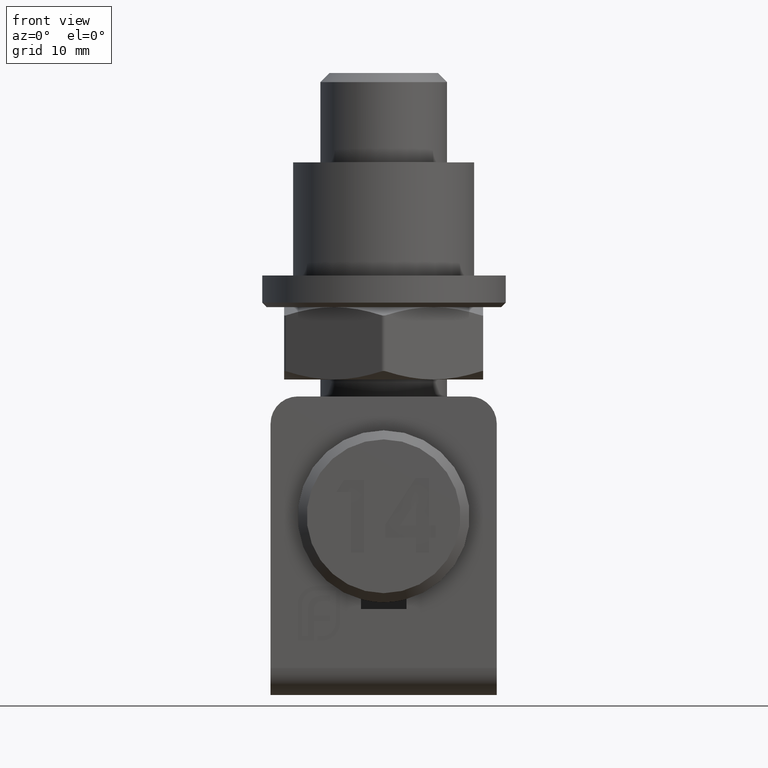
[diagram: clean part render]
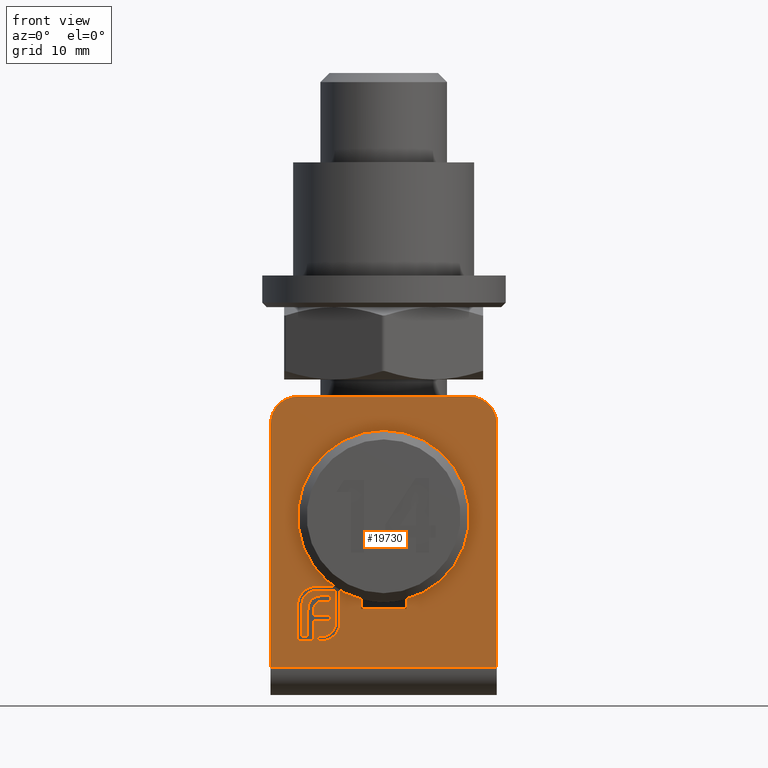
[diagram: same view with one face highlighted and labeled with its STEP entity id]
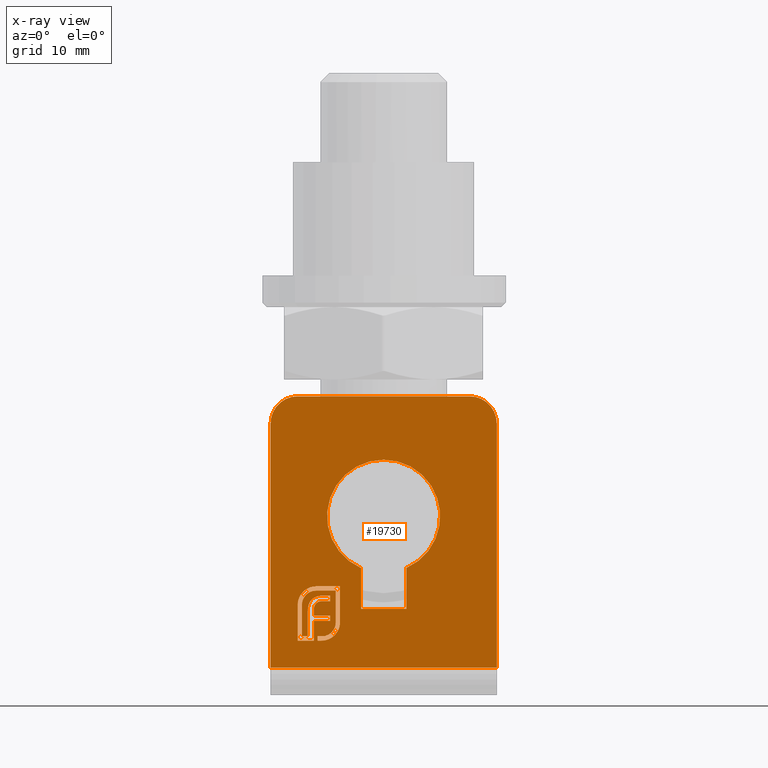
[diagram: x-ray of the same camera — body ghosted, the highlighted face saturated]
A machine part, front view. The second image highlights one B-rep face of the part: STEP entity #19730.
The next image is the same camera in x-ray: the body ghosted, the highlighted face saturated — about 0% of this face is hidden behind the body in this view.
In plain terms, the highlighted planar face has unit normal (0, 1, 0).
Its self-contained STEP definition (entity closure, byte-faithful):
#50 = EDGE_CURVE ( 'NONE', #9122, #4322, #8839, .T. ) ;
#101 = CARTESIAN_POINT ( 'NONE',  ( -8.566088173547937501, -13.00000000000000000, -6.932470258922326600 ) ) ;
#105 = CARTESIAN_POINT ( 'NONE',  ( -2.499999999999999556, -13.00000000000000178, -3.978219618694804449 ) ) ;
#115 = CARTESIAN_POINT ( 'NONE',  ( -7.400237928621415051, -13.00000000000000000, -7.130860741777470757 ) ) ;
#132 = ORIENTED_EDGE ( 'NONE', *, *, #7513, .T. ) ;
#177 = VERTEX_POINT ( 'NONE', #19785 ) ;
#209 = CARTESIAN_POINT ( 'NONE',  ( -6.863848845346397276, -12.99999999999999822, -11.52851644506648476 ) ) ;
#214 = ORIENTED_EDGE ( 'NONE', *, *, #1471, .T. ) ;
#225 = CARTESIAN_POINT ( 'NONE',  ( -6.549759342559739572, -12.99999999999999289, -11.50297381078894787 ) ) ;
#298 = VERTEX_POINT ( 'NONE', #3976 ) ;
#302 = CARTESIAN_POINT ( 'NONE',  ( -7.730888733379988942, -13.00000000000000000, -8.651854443666906036 ) ) ;
#318 = CIRCLE ( 'NONE', #14309, 6.250000000000000000 ) ;
#347 = CARTESIAN_POINT ( 'NONE',  ( -6.770433106287037539, -13.00000000000000178, -7.635780300047008140 ) ) ;
#449 = DIRECTION ( 'NONE',  ( -1.000000000000000000, 0.000000000000000000, 0.000000000000000000 ) ) ;
#461 = CARTESIAN_POINT ( 'NONE',  ( -5.552190294746988108, -12.99999999999999822, -10.83358292851261950 ) ) ;
#483 = ORIENTED_EDGE ( 'NONE', *, *, #13741, .T. ) ;
#518 = VERTEX_POINT ( 'NONE', #1221 ) ;
#544 = DIRECTION ( 'NONE',  ( 9.590931722097962823E-17, -0.000000000000000000, 1.000000000000000000 ) ) ;
#593 = CARTESIAN_POINT ( 'NONE',  ( 2.499999999999999556, -13.00000000000000178, -3.978219618694804449 ) ) ;
#595 = CARTESIAN_POINT ( 'NONE',  ( -5.471617862814120770, -12.99999999999999467, -10.70375276903396689 ) ) ;
#602 = CARTESIAN_POINT ( 'NONE',  ( -7.161434569629113511, -13.00000000000000000, -7.701539538138562513 ) ) ;
#604 = EDGE_CURVE ( 'NONE', #4322, #1997, #18329, .T. ) ;
#759 = LINE ( 'NONE', #1792, #11728 ) ;
#768 = CARTESIAN_POINT ( 'NONE',  ( -7.161434569629113511, -13.00000000000000000, -7.701539538138562513 ) ) ;
#846 = CARTESIAN_POINT ( 'NONE',  ( -7.466368089573130362, -13.00000000000000178, -7.899930020993705782 ) ) ;
#851 = B_SPLINE_CURVE_WITH_KNOTS ( 'NONE', 3,
 ( #3415, #19740, #4922, #14839, #1690, #11684, #5210 ),
 .UNSPECIFIED., .F., .F.,
 ( 4, 1, 1, 1, 4 ),
 ( 0.000000000000000000, 0.2388191941079590430, 0.4814904364426332295, 0.7358073612774026495, 1.000000000000000000 ),
 .UNSPECIFIED. ) ;
#975 = VERTEX_POINT ( 'NONE', #17075 ) ;
#1130 = CARTESIAN_POINT ( 'NONE',  ( -8.054352313862304769, -12.99999999999999822, -7.564903692512985778 ) ) ;
#1145 = LINE ( 'NONE', #19157, #2942 ) ;
#1221 = CARTESIAN_POINT ( 'NONE',  ( 12.50000000000000000, -12.99999999999999822, -15.00000000000000355 ) ) ;
#1229 = CARTESIAN_POINT ( 'NONE',  ( -7.082445766270121901, -12.99999999999999822, -12.00000000000000355 ) ) ;
#1311 = B_SPLINE_CURVE_WITH_KNOTS ( 'NONE', 3,
 ( #768, #5769, #13853, #2843, #10891, #1343, #17552 ),
 .UNSPECIFIED., .F., .F.,
 ( 4, 1, 1, 1, 4 ),
 ( 0.000000000000000000, 0.2571485471612715012, 0.5083415440098211224, 0.7546122201496923143, 1.000000000000000000 ),
 .UNSPECIFIED. ) ;
#1343 = CARTESIAN_POINT ( 'NONE',  ( -7.445396374081708402, -13.00000000000000000, -7.878326199893672666 ) ) ;
#1384 = ORIENTED_EDGE ( 'NONE', *, *, #1892, .T. ) ;
#1408 = ORIENTED_EDGE ( 'NONE', *, *, #17879, .T. ) ;
#1415 = CARTESIAN_POINT ( 'NONE',  ( -7.675215145164514752, -12.99999999999999822, -8.254489552862830593 ) ) ;
#1471 = EDGE_CURVE ( 'NONE', #17149, #17806, #18795, .T. ) ;
#1511 = ORIENTED_EDGE ( 'NONE', *, *, #20238, .T. ) ;
#1591 = CARTESIAN_POINT ( 'NONE',  ( 12.50000000000000000, -12.99999999999999822, -15.00000000000000355 ) ) ;
#1628 = DIRECTION ( 'NONE',  ( 9.590931722097962823E-17, -0.000000000000000000, -1.000000000000000000 ) ) ;
#1668 = CARTESIAN_POINT ( 'NONE',  ( -6.704850244927282432, -13.00000000000000178, -11.52415165109006523 ) ) ;
#1690 = CARTESIAN_POINT ( 'NONE',  ( -7.557855856204251488, -12.99999999999999645, -7.186325218019565142 ) ) ;
#1700 = CARTESIAN_POINT ( 'NONE',  ( -5.906513050667150821, -12.99999999999999289, -11.76538384599234455 ) ) ;
#1730 = ORIENTED_EDGE ( 'NONE', *, *, #3750, .T. ) ;
#1792 = CARTESIAN_POINT ( 'NONE',  ( -2.500000000000000000, -13.00000000000000178, -8.499999999999994671 ) ) ;
#1820 = CARTESIAN_POINT ( 'NONE',  ( -7.161434569629113511, -13.00000000000000000, -7.701539538138562513 ) ) ;
#1827 = CARTESIAN_POINT ( 'NONE',  ( -5.868665694668746546, -12.99999999999999822, -11.18262136189365741 ) ) ;
#1832 = EDGE_CURVE ( 'NONE', #9972, #12309, #7396, .T. ) ;
#1852 = CARTESIAN_POINT ( 'NONE',  ( -8.769521353321801271, -13.00000000000000000, -7.169346592754720859 ) ) ;
#1856 = EDGE_CURVE ( 'NONE', #975, #18429, #9017, .T. ) ;
#1892 = EDGE_CURVE ( 'NONE', #5041, #13272, #8297, .T. ) ;
#1898 = VECTOR ( 'NONE', #12132, 1000.000000000000000 ) ;
#1917 = CARTESIAN_POINT ( 'NONE',  ( -8.603315954647552388, -13.00000000000000178, -6.970461194472555633 ) ) ;
#1928 = CARTESIAN_POINT ( 'NONE',  ( -9.194324702589224074, -13.00000000000000000, -6.965535339398184256 ) ) ;
#1996 = DIRECTION ( 'NONE',  ( 0.000000000000000000, 3.427078129729373070E-14, -1.000000000000000000 ) ) ;
#1997 = VERTEX_POINT ( 'NONE', #3948 ) ;
#2059 = CARTESIAN_POINT ( 'NONE',  ( -5.788621413575929076, -12.99999999999999822, -11.69384184744576949 ) ) ;
#2083 = DIRECTION ( 'NONE',  ( 2.236619410981213033E-14, 4.473238821962426067E-14, -1.000000000000000000 ) ) ;
#2133 = CARTESIAN_POINT ( 'NONE',  ( -7.584042568921920413, -13.00000000000000178, -8.046340680819405122 ) ) ;
#2228 = CARTESIAN_POINT ( 'NONE',  ( -6.623820853743878523, -13.00000000000000000, -7.023093072078379961 ) ) ;
#2323 = CARTESIAN_POINT ( 'NONE',  ( -12.50000000000000000, -13.00000000000000178, 11.99999999999999289 ) ) ;
#2326 = EDGE_CURVE ( 'NONE', #11631, #14196, #15945, .T. ) ;
#2382 = B_SPLINE_CURVE_WITH_KNOTS ( 'NONE', 3,
 ( #3690, #12861, #14476, #2432, #1130, #17338, #9803 ),
 .UNSPECIFIED., .F., .F.,
 ( 4, 1, 1, 1, 4 ),
 ( 0.000000000000000000, 0.2605968594242243364, 0.5108487040965178361, 0.7577928974260942363, 0.9999999999999998890 ),
 .UNSPECIFIED. ) ;
#2432 = CARTESIAN_POINT ( 'NONE',  ( -8.144137172596060736, -12.99999999999999645, -7.694446797315327657 ) ) ;
#2458 = DIRECTION ( 'NONE',  ( -1.000000000000000000, 0.000000000000000000, 0.000000000000000000 ) ) ;
#2500 = ORIENTED_EDGE ( 'NONE', *, *, #16521, .T. ) ;
#2608 = CARTESIAN_POINT ( 'NONE',  ( -6.814812561752066067, -13.00000000000000000, -11.99919272320349606 ) ) ;
#2611 = CARTESIAN_POINT ( 'NONE',  ( -8.382475560078553656, -12.99999999999999645, -8.543526647995248524 ) ) ;
#2632 = CARTESIAN_POINT ( 'NONE',  ( -8.277074877536740871, -13.00000000000000000, -7.990552834149759143 ) ) ;
#2768 = CARTESIAN_POINT ( 'NONE',  ( -4.821161651504550782, -12.99999999999999822, -7.981980405878238649 ) ) ;
#2797 = CARTESIAN_POINT ( 'NONE',  ( -7.400237928621415051, -13.00000000000000000, -7.130860741777470757 ) ) ;
#2828 = CARTESIAN_POINT ( 'NONE',  ( -7.988128607820348392, -12.99999999999999645, -6.058217337289920401 ) ) ;
#2843 = CARTESIAN_POINT ( 'NONE',  ( -7.327818283931979870, -13.00000000000000000, -7.783925783482636085 ) ) ;
#2899 = VECTOR ( 'NONE', #3900, 1000.000000000000000 ) ;
#2942 = VECTOR ( 'NONE', #4403, 1000.000000000000000 ) ;
#2969 = VERTEX_POINT ( 'NONE', #14375 ) ;
#2971 = ORIENTED_EDGE ( 'NONE', *, *, #12626, .T. ) ;
#2987 = DIRECTION ( 'NONE',  ( 0.000000000000000000, 0.000000000000000000, 1.000000000000000000 ) ) ;
#2998 = ORIENTED_EDGE ( 'NONE', *, *, #15985, .T. ) ;
#3033 = LINE ( 'NONE', #1229, #19889 ) ;
#3036 = VECTOR ( 'NONE', #10300, 1000.000000000000000 ) ;
#3168 = VECTOR ( 'NONE', #20373, 1000.000000000000000 ) ;
#3195 = CARTESIAN_POINT ( 'NONE',  ( -9.500482855143458139, -12.99999999999999822, -10.01609517144856909 ) ) ;
#3237 = ORIENTED_EDGE ( 'NONE', *, *, #4184, .T. ) ;
#3264 = CARTESIAN_POINT ( 'NONE',  ( -7.301042687193843861, -12.99999999999999822, -11.76425822253324505 ) ) ;
#3291 = CARTESIAN_POINT ( 'NONE',  ( -6.159653851766157651, -12.99999999999999822, -11.87709708227097494 ) ) ;
#3390 = CARTESIAN_POINT ( 'NONE',  ( -9.028999300209939349, -12.99999999999999822, -11.52851644506648476 ) ) ;
#3399 = CARTESIAN_POINT ( 'NONE',  ( -6.122531041991389422, -12.99999999999999645, -11.35362514467191808 ) ) ;
#3415 = CARTESIAN_POINT ( 'NONE',  ( -7.946424072778167869, -13.00000000000000000, -7.452939118264524154 ) ) ;
#3467 = DIRECTION ( 'NONE',  ( 0.000000000000000000, 5.902190112311574406E-14, 1.000000000000000000 ) ) ;
#3476 = ORIENTED_EDGE ( 'NONE', *, *, #11796, .T. ) ;
#3498 = AXIS2_PLACEMENT_3D ( 'NONE', #18726, #9046, #4232 ) ;
#3569 = CARTESIAN_POINT ( 'NONE',  ( -5.222119301122347679, -12.99999999999999467, -11.18786039119060050 ) ) ;
#3587 = CARTESIAN_POINT ( 'NONE',  ( -8.966620311571350754, -13.00000000000000533, -7.574853533517645232 ) ) ;
#3658 = CARTESIAN_POINT ( 'NONE',  ( -7.630862625216776607, -13.00000000000000355, -8.130384924302598293 ) ) ;
#3667 = CARTESIAN_POINT ( 'NONE',  ( -7.459020293911827970, -13.00000000000000000, -5.998075577326805963 ) ) ;
#3683 = CARTESIAN_POINT ( 'NONE',  ( -6.956895859234473178, -12.99999999999999645, -7.651954961540678113 ) ) ;
#3690 = CARTESIAN_POINT ( 'NONE',  ( -8.277074877536740871, -13.00000000000000000, -7.990552834149759143 ) ) ;
#3750 = EDGE_CURVE ( 'NONE', #18752, #9972, #13324, .T. ) ;
#3760 = ORIENTED_EDGE ( 'NONE', *, *, #1832, .T. ) ;
#3778 = CARTESIAN_POINT ( 'NONE',  ( -5.389868758138798732, -13.00000000000000178, -11.38271610899181674 ) ) ;
#3797 = CARTESIAN_POINT ( 'NONE',  ( -7.664758572428274519, -13.00000000000000178, -8.222008397480761843 ) ) ;
#3838 = CARTESIAN_POINT ( 'NONE',  ( -6.821599020293913185, -12.99999999999999822, -9.817704688593424933 ) ) ;
#3873 = CARTESIAN_POINT ( 'NONE',  ( -5.406890167705848071, -13.00000000000000178, -10.56668142725440696 ) ) ;
#3897 = ORIENTED_EDGE ( 'NONE', *, *, #11312, .T. ) ;
#3900 = DIRECTION ( 'NONE',  ( 1.000000000000000000, -3.219376424897343515E-14, -3.219376424897343515E-14 ) ) ;
#3948 = CARTESIAN_POINT ( 'NONE',  ( -8.384842547235830779, -12.99999999999999822, -11.52851644506648476 ) ) ;
#3959 = CARTESIAN_POINT ( 'NONE',  ( -6.140090972708189376, -12.99999999999999822, -5.998075577326805075 ) ) ;
#3976 = CARTESIAN_POINT ( 'NONE',  ( -7.730888733379988054, -12.99999999999999822, -11.52851644506648476 ) ) ;
#4027 = ORIENTED_EDGE ( 'NONE', *, *, #1856, .T. ) ;
#4184 = EDGE_CURVE ( 'NONE', #15345, #8943, #10003, .T. ) ;
#4223 = DIRECTION ( 'NONE',  ( -0.000000000000000000, 1.000000000000000000, 1.051347561198065205E-16 ) ) ;
#4226 = CARTESIAN_POINT ( 'NONE',  ( -5.045126794699253736, -12.99999999999999645, -10.88982710312204105 ) ) ;
#4232 = DIRECTION ( 'NONE',  ( 0.000000000000000000, 0.000000000000000000, 1.000000000000000000 ) ) ;
#4257 = CARTESIAN_POINT ( 'NONE',  ( -9.218158552704425190, -12.99999999999999645, -7.004810334021633444 ) ) ;
#4268 = CARTESIAN_POINT ( 'NONE',  ( -4.821161651504550782, -13.00000000000000000, -5.998075577326805963 ) ) ;
#4272 = ORIENTED_EDGE ( 'NONE', *, *, #6892, .T. ) ;
#4276 = CARTESIAN_POINT ( 'NONE',  ( -8.277074877536740871, -13.00000000000000000, -7.990552834149759143 ) ) ;
#4305 = DIRECTION ( 'NONE',  ( 0.000000000000000000, -1.051347561198065205E-16, 1.000000000000000000 ) ) ;
#4322 = VERTEX_POINT ( 'NONE', #3390 ) ;
#4325 = LINE ( 'NONE', #10011, #6585 ) ;
#4353 = CARTESIAN_POINT ( 'NONE',  ( -6.572929676215234274, -13.00000000000000178, -11.98060464777251255 ) ) ;
#4367 = VERTEX_POINT ( 'NONE', #5519 ) ;
#4385 = EDGE_CURVE ( 'NONE', #11445, #12444, #11387, .T. ) ;
#4388 = FACE_BOUND ( 'NONE', #14804, .T. ) ;
#4403 = DIRECTION ( 'NONE',  ( 1.000000000000000000, 0.000000000000000000, 4.249576880870102935E-12 ) ) ;
#4562 = ORIENTED_EDGE ( 'NONE', *, *, #12551, .T. ) ;
#4628 = EDGE_CURVE ( 'NONE', #12309, #8912, #9636, .T. ) ;
#4714 = CARTESIAN_POINT ( 'NONE',  ( -7.730888733379988942, -13.00000000000000000, -8.651854443666906036 ) ) ;
#4718 = CARTESIAN_POINT ( 'NONE',  ( -9.499666960893474510, -13.00000000000000178, -7.984377804101307596 ) ) ;
#4743 = VERTEX_POINT ( 'NONE', #11984 ) ;
#4822 = LINE ( 'NONE', #7175, #3036 ) ;
#4831 = CARTESIAN_POINT ( 'NONE',  ( -9.417207837648707169, -13.00000000000000000, -7.470083974807561589 ) ) ;
#4922 = CARTESIAN_POINT ( 'NONE',  ( -7.833224457386100958, -13.00000000000000178, -7.348816899581505524 ) ) ;
#4933 = VECTOR ( 'NONE', #1628, 1000.000000000000000 ) ;
#4968 = ORIENTED_EDGE ( 'NONE', *, *, #8761, .T. ) ;
#4971 = CARTESIAN_POINT ( 'NONE',  ( -5.292645206438072236, -13.00000000000000178, -6.469559132260326528 ) ) ;
#4996 = VERTEX_POINT ( 'NONE', #602 ) ;
#5022 = CARTESIAN_POINT ( 'NONE',  ( -6.293170048985306408, -12.99999999999999822, -11.91672498250525258 ) ) ;
#5041 = VERTEX_POINT ( 'NONE', #15391 ) ;
#5077 = CARTESIAN_POINT ( 'NONE',  ( -9.024938726648978005, -13.00000000000000178, -7.875133732163876132 ) ) ;
#5086 = CARTESIAN_POINT ( 'NONE',  ( -6.268065080475858863, -13.00000000000000000, -7.023093072078379073 ) ) ;
#5140 = B_SPLINE_CURVE_WITH_KNOTS ( 'NONE', 3,
 ( #15114, #7032, #8469, #461, #595, #3873, #18428, #15172, #13400, #7112, #8683 ),
 .UNSPECIFIED., .F., .F.,
 ( 4, 1, 1, 1, 1, 1, 1, 1, 4 ),
 ( 0.000000000000000000, 0.1306449944096421123, 0.2560864575269015120, 0.3794856402491265657, 0.5015567681336506878, 0.6239904245018632611, 0.7465085164980392873, 0.8718400121249293422, 1.000000000000000000 ),
 .UNSPECIFIED. ) ;
#5187 = CARTESIAN_POINT ( 'NONE',  ( -7.128985288601774606, -13.00000000000000000, -7.690903131422103911 ) ) ;
#5210 = CARTESIAN_POINT ( 'NONE',  ( -7.400237928621415051, -13.00000000000000000, -7.130860741777470757 ) ) ;
#5301 = CARTESIAN_POINT ( 'NONE',  ( -7.037234379043826316, -13.00000000000000178, -7.046654734836389267 ) ) ;
#5304 = CARTESIAN_POINT ( 'NONE',  ( -9.146699469607810329, -12.99999999999999822, -6.894771722605674391 ) ) ;
#5318 = VERTEX_POINT ( 'NONE', #4971 ) ;
#5344 = CARTESIAN_POINT ( 'NONE',  ( -7.617741513626179461, -13.00000000000000178, -6.473410785245657273 ) ) ;
#5473 = CARTESIAN_POINT ( 'NONE',  ( -7.512587470875246254, -13.00000000000000355, -6.470859035180919427 ) ) ;
#5514 = CARTESIAN_POINT ( 'NONE',  ( -5.912309307207840092, -12.99999999999999822, -9.515832750174951116 ) ) ;
#5519 = CARTESIAN_POINT ( 'NONE',  ( -8.384842547235830779, -12.99999999999999822, -8.751049685094475450 ) ) ;
#5530 = VERTEX_POINT ( 'NONE', #6785 ) ;
#5586 = DIRECTION ( 'NONE',  ( 1.000000000000000000, 2.236619410981213033E-14, 1.118309705490606517E-14 ) ) ;
#5607 = VECTOR ( 'NONE', #2083, 1000.000000000000000 ) ;
#5618 = VERTEX_POINT ( 'NONE', #2632 ) ;
#5711 = LINE ( 'NONE', #15865, #2899 ) ;
#5741 = CARTESIAN_POINT ( 'NONE',  ( -6.863848845346397276, -12.99999999999999822, -12.00000000000000355 ) ) ;
#5769 = CARTESIAN_POINT ( 'NONE',  ( -7.190847893842451377, -13.00000000000000178, -7.712916249222200982 ) ) ;
#5853 = DIRECTION ( 'NONE',  ( 0.000000000000000000, 0.000000000000000000, -1.000000000000000000 ) ) ;
#5858 = ORIENTED_EDGE ( 'NONE', *, *, #10019, .T. ) ;
#5959 = B_SPLINE_CURVE_WITH_KNOTS ( 'NONE', 3,
 ( #14137, #17419, #10618, #10699, #9039, #4226, #20660 ),
 .UNSPECIFIED., .F., .F.,
 ( 4, 1, 1, 1, 4 ),
 ( 0.000000000000000000, 0.2556552308366630277, 0.5046914247193104996, 0.7519143346677191753, 1.000000000000000000 ),
 .UNSPECIFIED. ) ;
#6029 = CARTESIAN_POINT ( 'NONE',  ( -8.942662701189645347, -12.99999999999999822, -12.00000000000000355 ) ) ;
#6120 = ORIENTED_EDGE ( 'NONE', *, *, #15512, .T. ) ;
#6139 = CARTESIAN_POINT ( 'NONE',  ( -8.566088173547937501, -13.00000000000000000, -6.932470258922326600 ) ) ;
#6141 = CARTESIAN_POINT ( 'NONE',  ( -5.912309307207840092, -12.99999999999999822, -9.213960811756477298 ) ) ;
#6194 = EDGE_CURVE ( 'NONE', #20326, #14452, #9460, .T. ) ;
#6198 = CARTESIAN_POINT ( 'NONE',  ( 2.500000000000000000, -13.00000000000000178, -8.499999999999994671 ) ) ;
#6205 = VECTOR ( 'NONE', #3467, 1000.000000000000000 ) ;
#6290 = ORIENTED_EDGE ( 'NONE', *, *, #17963, .F. ) ;
#6369 = ORIENTED_EDGE ( 'NONE', *, *, #17189, .T. ) ;
#6401 = VERTEX_POINT ( 'NONE', #8977 ) ;
#6482 = ORIENTED_EDGE ( 'NONE', *, *, #17707, .T. ) ;
#6497 = EDGE_LOOP ( 'NONE', ( #6290, #9414, #483, #7106, #16252, #9135 ) ) ;
#6585 = VECTOR ( 'NONE', #449, 1000.000000000000000 ) ;
#6599 = ORIENTED_EDGE ( 'NONE', *, *, #13163, .T. ) ;
#6600 = EDGE_CURVE ( 'NONE', #19160, #4996, #11668, .T. ) ;
#6699 = CARTESIAN_POINT ( 'NONE',  ( -5.292645206438071348, -12.99999999999999822, -9.965885234429674000 ) ) ;
#6755 = CARTESIAN_POINT ( 'NONE',  ( -7.730888733379987166, -12.99999999999999822, -10.67311056682995840 ) ) ;
#6785 = CARTESIAN_POINT ( 'NONE',  ( -9.500000000000001776, -13.00000000000000178, 14.99999999999999289 ) ) ;
#6851 = CARTESIAN_POINT ( 'NONE',  ( -8.466892932120366311, -12.99999999999999822, -6.262596221133663654 ) ) ;
#6892 = EDGE_CURVE ( 'NONE', #18429, #13356, #21092, .T. ) ;
#6962 = CARTESIAN_POINT ( 'NONE',  ( -5.717795261646382521, -12.99999999999999822, -11.64755739698834347 ) ) ;
#7009 = CARTESIAN_POINT ( 'NONE',  ( -6.863848845346397276, -12.99999999999999822, -12.00000000000000355 ) ) ;
#7032 = CARTESIAN_POINT ( 'NONE',  ( -5.718359903634542718, -13.00000000000000000, -11.03532720734581218 ) ) ;
#7104 = CARTESIAN_POINT ( 'NONE',  ( 12.50000000000000000, -13.00000000000000178, 11.99999999999999289 ) ) ;
#7106 = ORIENTED_EDGE ( 'NONE', *, *, #17134, .T. ) ;
#7112 = CARTESIAN_POINT ( 'NONE',  ( -5.293989765731297759, -12.99999999999999822, -10.01863143698325587 ) ) ;
#7127 = LINE ( 'NONE', #17575, #15817 ) ;
#7175 = CARTESIAN_POINT ( 'NONE',  ( -5.292645206438072236, -12.99999999999999822, -8.217722183344998044 ) ) ;
#7176 = ORIENTED_EDGE ( 'NONE', *, *, #12856, .T. ) ;
#7396 = B_SPLINE_CURVE_WITH_KNOTS ( 'NONE', 3,
 ( #19333, #1415, #20996, #11193, #12851, #19415, #4714 ),
 .UNSPECIFIED., .F., .F.,
 ( 4, 1, 1, 1, 4 ),
 ( 0.000000000000000000, 0.2340869717720979182, 0.4770328878082503166, 0.7336123720772042001, 1.000000000000000000 ),
 .UNSPECIFIED. ) ;
#7455 = CARTESIAN_POINT ( 'NONE',  ( -6.717292451794627972, -13.00000000000000178, -11.99758726462892433 ) ) ;
#7457 = VECTOR ( 'NONE', #13815, 1000.000000000000000 ) ;
#7481 = VECTOR ( 'NONE', #20448, 1000.000000000000000 ) ;
#7513 = EDGE_CURVE ( 'NONE', #13356, #7635, #3033, .T. ) ;
#7522 = ORIENTED_EDGE ( 'NONE', *, *, #8195, .T. ) ;
#7541 = CARTESIAN_POINT ( 'NONE',  ( -5.912309307207840092, -13.00000000000000000, -7.635409377186848090 ) ) ;
#7631 = EDGE_CURVE ( 'NONE', #2969, #8548, #5140, .T. ) ;
#7635 = VERTEX_POINT ( 'NONE', #11829 ) ;
#7655 = CARTESIAN_POINT ( 'NONE',  ( -8.328044631410710608, -13.00000000000000000, -6.729548657697042913 ) ) ;
#7669 = CARTESIAN_POINT ( 'NONE',  ( -7.549461298914059704, -12.99999999999999822, -6.001466222160449782 ) ) ;
#7670 = CARTESIAN_POINT ( 'NONE',  ( -8.360016704211691518, -12.99999999999999822, -8.345681945137249258 ) ) ;
#7684 = CARTESIAN_POINT ( 'NONE',  ( -8.466892932120366311, -12.99999999999999822, -6.262596221133663654 ) ) ;
#7712 = CARTESIAN_POINT ( 'NONE',  ( -7.921194426554216683, -13.00000000000000355, -6.531273296374532578 ) ) ;
#7713 = B_SPLINE_CURVE_WITH_KNOTS ( 'NONE', 3,
 ( #1928, #5304, #8625, #18493, #11992, #15067, #6851 ),
 .UNSPECIFIED., .F., .F.,
 ( 4, 1, 1, 1, 4 ),
 ( 0.000000000000000000, 0.2502580117964922080, 0.4972880217287840576, 0.7465323960068208642, 1.000000000000000000 ),
 .UNSPECIFIED. ) ;
#7727 = CARTESIAN_POINT ( 'NONE',  ( -8.384842547235830779, -12.99999999999999822, -8.751049685094475450 ) ) ;
#7737 = LINE ( 'NONE', #6755, #10026 ) ;
#7759 = CARTESIAN_POINT ( 'NONE',  ( -7.723540937718687438, -13.00000000000000000, -12.00000000000000533 ) ) ;
#7866 = LINE ( 'NONE', #14827, #16590 ) ;
#8036 = CARTESIAN_POINT ( 'NONE',  ( -6.030277202555106797, -13.00000000000000178, -11.82676519695002249 ) ) ;
#8051 = VERTEX_POINT ( 'NONE', #7541 ) ;
#8126 = CARTESIAN_POINT ( 'NONE',  ( -9.500482855143458139, -13.00000000000000000, -8.032190342897134627 ) ) ;
#8195 = EDGE_CURVE ( 'NONE', #6401, #11751, #18900, .T. ) ;
#8199 = CARTESIAN_POINT ( 'NONE',  ( -9.498037557182673396, -13.00000000000000355, -7.888892478474770265 ) ) ;
#8297 = LINE ( 'NONE', #105, #20820 ) ;
#8383 = DIRECTION ( 'NONE',  ( -0.000000000000000000, 1.051347561198065081E-16, -1.000000000000000000 ) ) ;
#8408 = CARTESIAN_POINT ( 'NONE',  ( -7.487820919967857591, -12.99999999999999822, -7.922678188053978943 ) ) ;
#8469 = CARTESIAN_POINT ( 'NONE',  ( -5.645448561737971716, -13.00000000000000000, -10.95917352817091484 ) ) ;
#8476 = EDGE_CURVE ( 'NONE', #8943, #12411, #11993, .T. ) ;
#8548 = VERTEX_POINT ( 'NONE', #6699 ) ;
#8625 = CARTESIAN_POINT ( 'NONE',  ( -9.052063307018308080, -13.00000000000000000, -6.754157247358676841 ) ) ;
#8633 = LINE ( 'NONE', #6029, #18378 ) ;
#8649 = CARTESIAN_POINT ( 'NONE',  ( -6.846333194691616164, -13.00000000000000000, -7.636505062055405801 ) ) ;
#8683 = CARTESIAN_POINT ( 'NONE',  ( -5.292645206438071348, -12.99999999999999822, -9.965885234429674000 ) ) ;
#8759 = LINE ( 'NONE', #18745, #3168 ) ;
#8761 = EDGE_CURVE ( 'NONE', #177, #19846, #5959, .T. ) ;
#8839 = LINE ( 'NONE', #12315, #12689 ) ;
#8874 = ORIENTED_EDGE ( 'NONE', *, *, #17652, .T. ) ;
#8912 = VERTEX_POINT ( 'NONE', #13840 ) ;
#8927 = VERTEX_POINT ( 'NONE', #209 ) ;
#8943 = VERTEX_POINT ( 'NONE', #2228 ) ;
#8948 = EDGE_LOOP ( 'NONE', ( #10232, #1384, #2971, #6369 ) ) ;
#8977 = CARTESIAN_POINT ( 'NONE',  ( -7.723540937718687438, -13.00000000000000000, -11.52851644506648654 ) ) ;
#9014 = EDGE_CURVE ( 'NONE', #10562, #5041, #759, .T. ) ;
#9017 = B_SPLINE_CURVE_WITH_KNOTS ( 'NONE', 3,
 ( #16197, #14565, #1700, #8036, #3291, #21209, #16140 ),
 .UNSPECIFIED., .F., .F.,
 ( 4, 1, 1, 1, 4 ),
 ( 0.000000000000000000, 0.2488520650224796960, 0.4981264545242570785, 0.7474499050962992719, 1.000000000000000000 ),
 .UNSPECIFIED. ) ;
#9039 = CARTESIAN_POINT ( 'NONE',  ( -4.964156831355762023, -12.99999999999999645, -10.73692748427462718 ) ) ;
#9046 = DIRECTION ( 'NONE',  ( 0.000000000000000000, -1.000000000000000000, -1.051347561198065205E-16 ) ) ;
#9122 = VERTEX_POINT ( 'NONE', #16285 ) ;
#9135 = ORIENTED_EDGE ( 'NONE', *, *, #18351, .T. ) ;
#9136 = CARTESIAN_POINT ( 'NONE',  ( -6.731588523442969318, -13.00000000000000000, -7.635409377186848090 ) ) ;
#9275 = CARTESIAN_POINT ( 'NONE',  ( -9.265866701135799133, -12.99999999999999645, -7.083426976489406002 ) ) ;
#9278 = CARTESIAN_POINT ( 'NONE',  ( -8.528152703301151050, -13.00000000000000000, -6.895164465242354268 ) ) ;
#9318 = CARTESIAN_POINT ( 'NONE',  ( -7.301042687193844749, -13.00000000000000000, -11.52851644506648654 ) ) ;
#9326 = VERTEX_POINT ( 'NONE', #7684 ) ;
#9335 = EDGE_CURVE ( 'NONE', #16048, #177, #9424, .T. ) ;
#9348 = CIRCLE ( 'NONE', #16963, 2.999999999999999112 ) ;
#9356 = CARTESIAN_POINT ( 'NONE',  ( -9.194324702589224074, -13.00000000000000000, -6.965535339398184256 ) ) ;
#9367 = VERTEX_POINT ( 'NONE', #6139 ) ;
#9414 = ORIENTED_EDGE ( 'NONE', *, *, #4385, .T. ) ;
#9424 = LINE ( 'NONE', #2768, #10449 ) ;
#9452 = CARTESIAN_POINT ( 'NONE',  ( -7.459020293911827970, -13.00000000000000000, -5.998075577326805963 ) ) ;
#9460 = B_SPLINE_CURVE_WITH_KNOTS ( 'NONE', 3,
 ( #18683, #15511, #17147, #12523, #9275, #4257, #9356 ),
 .UNSPECIFIED., .F., .F.,
 ( 4, 1, 1, 1, 4 ),
 ( 0.000000000000000000, 0.2525500949037004506, 0.5018735454757436987, 0.7511479349775207481, 1.000000000000000000 ),
 .UNSPECIFIED. ) ;
#9553 = EDGE_CURVE ( 'NONE', #4743, #15345, #851, .T. ) ;
#9636 = LINE ( 'NONE', #12103, #16261 ) ;
#9648 = VERTEX_POINT ( 'NONE', #593 ) ;
#9678 = LINE ( 'NONE', #10197, #5607 ) ;
#9695 = EDGE_CURVE ( 'NONE', #15566, #16048, #10959, .T. ) ;
#9798 = DIRECTION ( 'NONE',  ( 3.057249554578601520E-14, 3.057249554578601520E-14, 1.000000000000000000 ) ) ;
#9803 = CARTESIAN_POINT ( 'NONE',  ( -7.946424072778167869, -13.00000000000000000, -7.452939118264524154 ) ) ;
#9910 = ORIENTED_EDGE ( 'NONE', *, *, #19478, .T. ) ;
#9930 = CARTESIAN_POINT ( 'NONE',  ( -7.062550847223672434, -13.00000000000000000, -7.669126878879475306 ) ) ;
#9938 = CARTESIAN_POINT ( 'NONE',  ( 2.500000000000000000, -13.00000000000000178, -8.499999999999994671 ) ) ;
#9962 = CARTESIAN_POINT ( 'NONE',  ( -5.085682295311408474, -12.99999999999999822, -10.96641007697690995 ) ) ;
#9972 = VERTEX_POINT ( 'NONE', #11772 ) ;
#9999 = CARTESIAN_POINT ( 'NONE',  ( -6.863848845346397276, -12.99999999999999822, -11.52851644506648476 ) ) ;
#10003 = B_SPLINE_CURVE_WITH_KNOTS ( 'NONE', 3,
 ( #115, #20405, #19625, #5301, #18488, #18365, #18285 ),
 .UNSPECIFIED., .F., .F.,
 ( 4, 1, 1, 1, 4 ),
 ( 0.000000000000000000, 0.2272979020928515281, 0.4678675333846075701, 0.7258957337886732253, 0.9999999999999998890 ),
 .UNSPECIFIED. ) ;
#10011 = CARTESIAN_POINT ( 'NONE',  ( -6.321948915325402929, -12.99999999999999822, -7.635409377186847202 ) ) ;
#10019 = EDGE_CURVE ( 'NONE', #9367, #9122, #12373, .T. ) ;
#10026 = VECTOR ( 'NONE', #1996, 1000.000000000000000 ) ;
#10055 = LINE ( 'NONE', #3838, #1898 ) ;
#10197 = CARTESIAN_POINT ( 'NONE',  ( -5.912309307207840092, -13.00000000000000000, -7.329251224632614026 ) ) ;
#10220 = EDGE_CURVE ( 'NONE', #9326, #15566, #15101, .T. ) ;
#10232 = ORIENTED_EDGE ( 'NONE', *, *, #9014, .T. ) ;
#10252 = CARTESIAN_POINT ( 'NONE',  ( -7.466368089573130362, -13.00000000000000178, -7.899930020993705782 ) ) ;
#10300 = DIRECTION ( 'NONE',  ( -8.398373282340697265E-15, -1.679674656468139453E-14, 1.000000000000000000 ) ) ;
#10337 = B_SPLINE_CURVE_WITH_KNOTS ( 'NONE', 3,
 ( #7727, #10868, #2611, #7670, #19171, #11014, #4276 ),
 .UNSPECIFIED., .F., .F.,
 ( 4, 1, 1, 1, 4 ),
 ( 0.000000000000000000, 0.2747959748008356740, 0.5318452979585361895, 0.7738357390492460741, 0.9999999999999998890 ),
 .UNSPECIFIED. ) ;
#10340 = DIRECTION ( 'NONE',  ( 0.000000000000000000, 0.000000000000000000, -1.000000000000000000 ) ) ;
#10358 = CARTESIAN_POINT ( 'NONE',  ( 12.50000000000000000, -13.00000000000000178, 14.99999999999999289 ) ) ;
#10393 = DIRECTION ( 'NONE',  ( 0.000000000000000000, 4.884571127430220011E-14, -1.000000000000000000 ) ) ;
#10434 = CARTESIAN_POINT ( 'NONE',  ( -7.723540937718688326, -13.00000000000000178, -11.76425822253324505 ) ) ;
#10449 = VECTOR ( 'NONE', #5853, 1000.000000000000000 ) ;
#10553 = CARTESIAN_POINT ( 'NONE',  ( -7.459020293911827970, -13.00000000000000000, -6.469559132260325640 ) ) ;
#10562 = VERTEX_POINT ( 'NONE', #9938 ) ;
#10618 = CARTESIAN_POINT ( 'NONE',  ( -4.831241962667209400, -13.00000000000000000, -10.23124653378254578 ) ) ;
#10677 = VERTEX_POINT ( 'NONE', #10553 ) ;
#10699 = CARTESIAN_POINT ( 'NONE',  ( -4.881718480584541275, -12.99999999999999645, -10.48959233252740830 ) ) ;
#10779 = CARTESIAN_POINT ( 'NONE',  ( -8.566088173547937501, -13.00000000000000000, -6.932470258922326600 ) ) ;
#10823 = ORIENTED_EDGE ( 'NONE', *, *, #20485, .T. ) ;
#10866 = CARTESIAN_POINT ( 'NONE',  ( -6.430978871658752816, -12.99999999999999645, -11.95589325178936413 ) ) ;
#10867 = CARTESIAN_POINT ( 'NONE',  ( -7.727613047087404041, -13.00000000000000533, -6.008145153962832552 ) ) ;
#10868 = CARTESIAN_POINT ( 'NONE',  ( -8.384036193079168697, -12.99999999999999822, -8.680353457168726194 ) ) ;
#10891 = CARTESIAN_POINT ( 'NONE',  ( -7.403377487630770304, -12.99999999999999822, -7.835040827932568064 ) ) ;
#10919 = DIRECTION ( 'NONE',  ( 1.000000000000000000, 0.000000000000000000, -4.336302939657541104E-14 ) ) ;
#10959 = LINE ( 'NONE', #3959, #15074 ) ;
#10973 = CARTESIAN_POINT ( 'NONE',  ( -9.500000000000001776, -13.00000000000000178, 11.99999999999999289 ) ) ;
#11000 = CARTESIAN_POINT ( 'NONE',  ( -8.199405764646757078, -12.99999999999999645, -6.648507165961101251 ) ) ;
#11011 = CARTESIAN_POINT ( 'NONE',  ( -8.389884353999603306, -13.00000000000000000, -6.222080968522177180 ) ) ;
#11014 = CARTESIAN_POINT ( 'NONE',  ( -8.294240470500302109, -13.00000000000000178, -8.046175886661199428 ) ) ;
#11176 = ORIENTED_EDGE ( 'NONE', *, *, #4628, .T. ) ;
#11193 = CARTESIAN_POINT ( 'NONE',  ( -7.716658345081468084, -12.99999999999999822, -8.425841373495291720 ) ) ;
#11234 = AXIS2_PLACEMENT_3D ( 'NONE', #20711, #4223, #4305 ) ;
#11312 = EDGE_CURVE ( 'NONE', #5618, #4743, #2382, .T. ) ;
#11387 = CIRCLE ( 'NONE', #3498, 2.999999999999999112 ) ;
#11442 = CARTESIAN_POINT ( 'NONE',  ( -6.810305500201187634, -13.00000000000000178, -11.52704658514475433 ) ) ;
#11445 = VERTEX_POINT ( 'NONE', #7104 ) ;
#11512 = CARTESIAN_POINT ( 'NONE',  ( -5.793556041678010082, -12.99999999999999822, -11.11060997225183833 ) ) ;
#11566 = LINE ( 'NONE', #3264, #6205 ) ;
#11585 = CARTESIAN_POINT ( 'NONE',  ( -6.401004846292215333, -13.00000000000000000, -11.46791200578304171 ) ) ;
#11631 = VERTEX_POINT ( 'NONE', #18858 ) ;
#11653 = DIRECTION ( 'NONE',  ( -1.000000000000000000, 0.000000000000000000, 0.000000000000000000 ) ) ;
#11668 = B_SPLINE_CURVE_WITH_KNOTS ( 'NONE', 3,
 ( #14928, #347, #8649, #3683, #9930, #5187, #1820 ),
 .UNSPECIFIED., .F., .F.,
 ( 4, 1, 1, 1, 4 ),
 ( 0.000000000000000000, 0.2664516210972243671, 0.5206311952944916444, 0.7658567945036389712, 0.9999999999999998890 ),
 .UNSPECIFIED. ) ;
#11684 = CARTESIAN_POINT ( 'NONE',  ( -7.453440150458530589, -13.00000000000000000, -7.149582174132052437 ) ) ;
#11700 = ORIENTED_EDGE ( 'NONE', *, *, #15802, .T. ) ;
#11728 = VECTOR ( 'NONE', #18279, 1000.000000000000000 ) ;
#11751 = VERTEX_POINT ( 'NONE', #7759 ) ;
#11772 = CARTESIAN_POINT ( 'NONE',  ( -7.664758572428274519, -13.00000000000000178, -8.222008397480761843 ) ) ;
#11796 = EDGE_CURVE ( 'NONE', #14196, #20326, #20572, .T. ) ;
#11829 = CARTESIAN_POINT ( 'NONE',  ( -7.301042687193843861, -12.99999999999999822, -12.00000000000000355 ) ) ;
#11836 = LINE ( 'NONE', #17016, #7481 ) ;
#11854 = CARTESIAN_POINT ( 'NONE',  ( 0.000000000000000000, -13.00000000000000178, 1.749999999999996447 ) ) ;
#11974 = CARTESIAN_POINT ( 'NONE',  ( -7.653300918101836103, -13.00000000000000355, -8.191037435751532314 ) ) ;
#11984 = CARTESIAN_POINT ( 'NONE',  ( -7.946424072778167869, -13.00000000000000000, -7.452939118264524154 ) ) ;
#11992 = CARTESIAN_POINT ( 'NONE',  ( -8.685119523797824925, -13.00000000000000000, -6.399700253424986052 ) ) ;
#11993 = LINE ( 'NONE', #5086, #14281 ) ;
#12103 = CARTESIAN_POINT ( 'NONE',  ( -7.730888733379990718, -13.00000000000000178, -8.932907627711692555 ) ) ;
#12110 = ORIENTED_EDGE ( 'NONE', *, *, #9695, .T. ) ;
#12132 = DIRECTION ( 'NONE',  ( -1.000000000000000000, -3.243951817453621698E-14, -3.243951817453621698E-14 ) ) ;
#12307 = LINE ( 'NONE', #19494, #13605 ) ;
#12309 = VERTEX_POINT ( 'NONE', #302 ) ;
#12315 = CARTESIAN_POINT ( 'NONE',  ( -9.028999300209939349, -12.99999999999999467, -9.780353393981805254 ) ) ;
#12373 = B_SPLINE_CURVE_WITH_KNOTS ( 'NONE', 3,
 ( #101, #1917, #19746, #1852, #13271, #14843, #3587, #14967, #5077, #16480, #16647 ),
 .UNSPECIFIED., .F., .F.,
 ( 4, 1, 1, 1, 1, 1, 1, 1, 4 ),
 ( 0.000000000000000000, 0.1299413980652468770, 0.2553168128651460700, 0.3785843888810161983, 0.5009025839210318187, 0.6227719332849922518, 0.7450330940261352675, 0.8710940694072583090, 1.000000000000000000 ),
 .UNSPECIFIED. ) ;
#12411 = VERTEX_POINT ( 'NONE', #19676 ) ;
#12422 = ORIENTED_EDGE ( 'NONE', *, *, #2326, .T. ) ;
#12444 = VERTEX_POINT ( 'NONE', #19733 ) ;
#12472 = ORIENTED_EDGE ( 'NONE', *, *, #15350, .T. ) ;
#12523 = CARTESIAN_POINT ( 'NONE',  ( -9.327248052093473518, -12.99999999999999822, -7.207191128377359313 ) ) ;
#12551 = EDGE_CURVE ( 'NONE', #1997, #4367, #11836, .T. ) ;
#12575 = EDGE_CURVE ( 'NONE', #13669, #17045, #8759, .T. ) ;
#12626 = EDGE_CURVE ( 'NONE', #13272, #9648, #318, .T. ) ;
#12647 = CARTESIAN_POINT ( 'NONE',  ( -8.063188098163530881, -13.00000000000000178, -6.583575515572738013 ) ) ;
#12689 = VECTOR ( 'NONE', #15592, 1000.000000000000000 ) ;
#12731 = CARTESIAN_POINT ( 'NONE',  ( -8.453382333619952504, -12.99999999999999822, -6.821635180734846315 ) ) ;
#12739 = EDGE_CURVE ( 'NONE', #8912, #17149, #5711, .T. ) ;
#12754 = CARTESIAN_POINT ( 'NONE',  ( -8.466892932120366311, -12.99999999999999822, -6.262596221133663654 ) ) ;
#12851 = CARTESIAN_POINT ( 'NONE',  ( -7.729150924773958486, -12.99999999999999645, -8.536835668904446450 ) ) ;
#12856 = EDGE_CURVE ( 'NONE', #14483, #298, #7737, .T. ) ;
#12861 = CARTESIAN_POINT ( 'NONE',  ( -8.257836264961456507, -13.00000000000000355, -7.938608773437223931 ) ) ;
#12884 = ORIENTED_EDGE ( 'NONE', *, *, #17008, .T. ) ;
#12998 = CARTESIAN_POINT ( 'NONE',  ( -9.430267328604248434, -13.00000000000000000, -7.515611734619724871 ) ) ;
#13083 = B_SPLINE_CURVE_WITH_KNOTS ( 'NONE', 3,
 ( #15222, #5473, #5344, #16742, #7712, #12647, #11000, #7655, #12731, #9278, #10779 ),
 .UNSPECIFIED., .F., .F.,
 ( 4, 1, 1, 1, 1, 1, 1, 1, 4 ),
 ( 0.000000000000000000, 0.1301749492335604053, 0.2555374942785395564, 0.3790510438838185503, 0.5015150317641999811, 0.6227213693748334666, 0.7453059916511171057, 0.8707785314296304646, 1.000000000000000000 ),
 .UNSPECIFIED. ) ;
#13161 = CARTESIAN_POINT ( 'NONE',  ( -5.755556333100072308, -12.99999999999999822, -11.07417774667600163 ) ) ;
#13163 = EDGE_CURVE ( 'NONE', #7635, #17022, #11566, .T. ) ;
#13175 = CARTESIAN_POINT ( 'NONE',  ( -9.194324702589224074, -13.00000000000000000, -6.965535339398184256 ) ) ;
#13271 = CARTESIAN_POINT ( 'NONE',  ( -8.849633339452438463, -13.00000000000000000, -7.298331996335492455 ) ) ;
#13272 = VERTEX_POINT ( 'NONE', #21088 ) ;
#13300 = DIRECTION ( 'NONE',  ( 0.000000000000000000, 1.000000000000000000, 0.000000000000000000 ) ) ;
#13324 = B_SPLINE_CURVE_WITH_KNOTS ( 'NONE', 3,
 ( #10252, #8408, #19822, #2133, #3658, #11974, #3797 ),
 .UNSPECIFIED., .F., .F.,
 ( 4, 1, 1, 1, 4 ),
 ( 0.000000000000000000, 0.2455219258146090766, 0.4921953144302180783, 0.7406999461853227551, 1.000000000000000000 ),
 .UNSPECIFIED. ) ;
#13356 = VERTEX_POINT ( 'NONE', #7009 ) ;
#13363 = B_SPLINE_CURVE_WITH_KNOTS ( 'NONE', 3,
 ( #9999, #11442, #1668, #225, #11585, #14732, #3399, #16387, #1827, #11512, #13161 ),
 .UNSPECIFIED., .F., .F.,
 ( 4, 1, 1, 1, 1, 1, 1, 1, 4 ),
 ( 0.000000000000000000, 0.1304902425292578660, 0.2570045222119936579, 0.3808172307134175538, 0.5023049142174768056, 0.6242765738051625490, 0.7466372728324800478, 0.8718179433199507722, 1.000000000000000000 ),
 .UNSPECIFIED. ) ;
#13400 = CARTESIAN_POINT ( 'NONE',  ( -5.296649209880344600, -12.99999999999999822, -10.12295973285852746 ) ) ;
#13551 = ORIENTED_EDGE ( 'NONE', *, *, #14581, .T. ) ;
#13598 = DIRECTION ( 'NONE',  ( 2.951095056155961384E-14, 1.180438022462384553E-13, -1.000000000000000000 ) ) ;
#13605 = VECTOR ( 'NONE', #11653, 1000.000000000000000 ) ;
#13669 = VERTEX_POINT ( 'NONE', #2323 ) ;
#13704 = ORIENTED_EDGE ( 'NONE', *, *, #12739, .T. ) ;
#13741 = EDGE_CURVE ( 'NONE', #12444, #5530, #16407, .T. ) ;
#13815 = DIRECTION ( 'NONE',  ( -1.000000000000000000, -0.000000000000000000, -0.000000000000000000 ) ) ;
#13840 = CARTESIAN_POINT ( 'NONE',  ( -7.730888733379988942, -13.00000000000000000, -9.213960811756479075 ) ) ;
#13853 = CARTESIAN_POINT ( 'NONE',  ( -7.248993330828693793, -13.00000000000000000, -7.735406187204944217 ) ) ;
#13912 = ORIENTED_EDGE ( 'NONE', *, *, #15894, .T. ) ;
#13962 = VECTOR ( 'NONE', #10919, 1000.000000000000000 ) ;
#14137 = CARTESIAN_POINT ( 'NONE',  ( -4.821161651504550782, -12.99999999999999822, -9.965885234429674000 ) ) ;
#14146 = CARTESIAN_POINT ( 'NONE',  ( -8.706920923722886840, -13.00000000000000178, -11.52851644506648654 ) ) ;
#14196 = VERTEX_POINT ( 'NONE', #15204 ) ;
#14262 = DIRECTION ( 'NONE',  ( 0.000000000000000000, -1.000000000000000000, -1.051347561198065205E-16 ) ) ;
#14281 = VECTOR ( 'NONE', #16358, 1000.000000000000000 ) ;
#14309 = AXIS2_PLACEMENT_3D ( 'NONE', #11854, #13300, #18307 ) ;
#14375 = CARTESIAN_POINT ( 'NONE',  ( -5.755556333100072308, -12.99999999999999822, -11.07417774667600163 ) ) ;
#14452 = VERTEX_POINT ( 'NONE', #13175 ) ;
#14476 = CARTESIAN_POINT ( 'NONE',  ( -8.220122762487118706, -13.00000000000000178, -7.836782695566828494 ) ) ;
#14483 = VERTEX_POINT ( 'NONE', #16466 ) ;
#14565 = CARTESIAN_POINT ( 'NONE',  ( -5.827896408199378264, -12.99999999999999289, -11.71767569756096528 ) ) ;
#14581 = EDGE_CURVE ( 'NONE', #19846, #975, #14712, .T. ) ;
#14620 = CARTESIAN_POINT ( 'NONE',  ( -9.417207837648707169, -13.00000000000000000, -7.470083974807561589 ) ) ;
#14662 = VECTOR ( 'NONE', #9798, 1000.000000000000000 ) ;
#14712 = B_SPLINE_CURVE_WITH_KNOTS ( 'NONE', 3,
 ( #18199, #19800, #3569, #3778, #20092, #6962, #2059 ),
 .UNSPECIFIED., .F., .F.,
 ( 4, 1, 1, 1, 4 ),
 ( 0.000000000000000000, 0.2562051497895829755, 0.5061026040850942209, 0.7520689786812697619, 1.000000000000000000 ),
 .UNSPECIFIED. ) ;
#14732 = CARTESIAN_POINT ( 'NONE',  ( -6.259139959507017181, -13.00000000000000355, -11.41648675173941108 ) ) ;
#14804 = EDGE_LOOP ( 'NONE', ( #18947, #12110, #19921, #4968, #13551, #4027, #4272, #132, #6599, #12472, #10823, #16026, #13912, #2500, #8874, #5858, #16997, #21096, #4562, #1511, #3897, #19459, #3237, #16085, #6120, #11700, #19331, #12884, #1730, #3760, #11176, #13704, #214, #1408, #7176, #6482, #7522, #2998, #12422, #3476, #18548, #9910 ) ) ;
#14827 = CARTESIAN_POINT ( 'NONE',  ( 12.50000000000000000, -12.99999999999999822, -18.00000000000000355 ) ) ;
#14839 = CARTESIAN_POINT ( 'NONE',  ( -7.701928174504701019, -13.00000000000000000, -7.261993628143985191 ) ) ;
#14843 = CARTESIAN_POINT ( 'NONE',  ( -8.916607279024335142, -13.00000000000000000, -7.433212829497058749 ) ) ;
#14928 = CARTESIAN_POINT ( 'NONE',  ( -6.731588523442969318, -13.00000000000000000, -7.635409377186848090 ) ) ;
#14956 = VECTOR ( 'NONE', #10340, 1000.000000000000000 ) ;
#14967 = CARTESIAN_POINT ( 'NONE',  ( -9.002095595947952944, -12.99999999999999645, -7.722202159009794009 ) ) ;
#15067 = CARTESIAN_POINT ( 'NONE',  ( -8.540041391318970554, -13.00000000000000178, -6.308552805227909843 ) ) ;
#15074 = VECTOR ( 'NONE', #5586, 1000.000000000000000 ) ;
#15101 = B_SPLINE_CURVE_WITH_KNOTS ( 'NONE', 3,
 ( #12754, #11011, #19011, #2828, #10867, #7669, #9452 ),
 .UNSPECIFIED., .F., .F.,
 ( 4, 1, 1, 1, 4 ),
 ( 0.000000000000000000, 0.2474395555566212823, 0.4929798653999196145, 0.7426047681273373335, 1.000000000000000000 ),
 .UNSPECIFIED. ) ;
#15114 = CARTESIAN_POINT ( 'NONE',  ( -5.755556333100072308, -12.99999999999999822, -11.07417774667600163 ) ) ;
#15172 = CARTESIAN_POINT ( 'NONE',  ( -5.319826060438185067, -12.99999999999999467, -10.27619761759197381 ) ) ;
#15204 = CARTESIAN_POINT ( 'NONE',  ( -9.500482855143458139, -13.00000000000000000, -8.032190342897134627 ) ) ;
#15222 = CARTESIAN_POINT ( 'NONE',  ( -7.459020293911827970, -13.00000000000000000, -6.469559132260325640 ) ) ;
#15345 = VERTEX_POINT ( 'NONE', #2797 ) ;
#15350 = EDGE_CURVE ( 'NONE', #17022, #8927, #7127, .T. ) ;
#15391 = CARTESIAN_POINT ( 'NONE',  ( -2.500000000000000000, -13.00000000000000178, -8.499999999999994671 ) ) ;
#15398 = LINE ( 'NONE', #6198, #4933 ) ;
#15511 = CARTESIAN_POINT ( 'NONE',  ( -9.403942041842032751, -13.00000000000000000, -7.425388227651603223 ) ) ;
#15512 = EDGE_CURVE ( 'NONE', #12411, #8051, #9678, .T. ) ;
#15566 = VERTEX_POINT ( 'NONE', #3667 ) ;
#15592 = DIRECTION ( 'NONE',  ( 0.000000000000000000, 0.000000000000000000, -1.000000000000000000 ) ) ;
#15601 = FACE_BOUND ( 'NONE', #8948, .T. ) ;
#15802 = EDGE_CURVE ( 'NONE', #8051, #19160, #4325, .T. ) ;
#15817 = VECTOR ( 'NONE', #17865, 1000.000000000000000 ) ;
#15865 = CARTESIAN_POINT ( 'NONE',  ( -6.821599020293913185, -12.99999999999999645, -9.213960811756475522 ) ) ;
#15894 = EDGE_CURVE ( 'NONE', #8548, #5318, #4822, .T. ) ;
#15945 = LINE ( 'NONE', #3195, #14662 ) ;
#15985 = EDGE_CURVE ( 'NONE', #11751, #11631, #8633, .T. ) ;
#16026 = ORIENTED_EDGE ( 'NONE', *, *, #7631, .T. ) ;
#16048 = VERTEX_POINT ( 'NONE', #4268 ) ;
#16085 = ORIENTED_EDGE ( 'NONE', *, *, #8476, .T. ) ;
#16140 = CARTESIAN_POINT ( 'NONE',  ( -6.293170048985306408, -12.99999999999999822, -11.91672498250525258 ) ) ;
#16197 = CARTESIAN_POINT ( 'NONE',  ( -5.788621413575929076, -12.99999999999999822, -11.69384184744576949 ) ) ;
#16252 = ORIENTED_EDGE ( 'NONE', *, *, #12575, .T. ) ;
#16261 = VECTOR ( 'NONE', #10393, 1000.000000000000000 ) ;
#16285 = CARTESIAN_POINT ( 'NONE',  ( -9.028999300209939349, -13.00000000000000000, -8.032190342897134627 ) ) ;
#16290 = DIRECTION ( 'NONE',  ( 1.000000000000000000, -0.000000000000000000, -0.000000000000000000 ) ) ;
#16358 = DIRECTION ( 'NONE',  ( 1.000000000000000000, -7.726503419753524472E-14, -1.931625854938381118E-14 ) ) ;
#16387 = CARTESIAN_POINT ( 'NONE',  ( -5.993612215726185077, -12.99999999999999467, -11.27345663500204864 ) ) ;
#16407 = LINE ( 'NONE', #10358, #7457 ) ;
#16466 = CARTESIAN_POINT ( 'NONE',  ( -7.730888733379988054, -12.99999999999999822, -9.817704688593424933 ) ) ;
#16480 = CARTESIAN_POINT ( 'NONE',  ( -9.027635744459820089, -13.00000000000000178, -7.979450147098467561 ) ) ;
#16521 = EDGE_CURVE ( 'NONE', #5318, #10677, #12307, .T. ) ;
#16590 = VECTOR ( 'NONE', #8383, 1000.000000000000000 ) ;
#16647 = CARTESIAN_POINT ( 'NONE',  ( -9.028999300209939349, -13.00000000000000000, -8.032190342897134627 ) ) ;
#16742 = CARTESIAN_POINT ( 'NONE',  ( -7.772151588271393408, -12.99999999999999645, -6.496905422832096377 ) ) ;
#16963 = AXIS2_PLACEMENT_3D ( 'NONE', #10973, #14262, #2987 ) ;
#16997 = ORIENTED_EDGE ( 'NONE', *, *, #50, .T. ) ;
#17008 = EDGE_CURVE ( 'NONE', #4996, #18752, #1311, .T. ) ;
#17016 = CARTESIAN_POINT ( 'NONE',  ( -8.384842547235832555, -12.99999999999999822, -10.13978306508048277 ) ) ;
#17022 = VERTEX_POINT ( 'NONE', #9318 ) ;
#17045 = VERTEX_POINT ( 'NONE', #19035 ) ;
#17075 = CARTESIAN_POINT ( 'NONE',  ( -5.788621413575929076, -12.99999999999999822, -11.69384184744576949 ) ) ;
#17134 = EDGE_CURVE ( 'NONE', #5530, #13669, #9348, .T. ) ;
#17147 = CARTESIAN_POINT ( 'NONE',  ( -9.377579937414429523, -13.00000000000000178, -7.336567777588414607 ) ) ;
#17149 = VERTEX_POINT ( 'NONE', #6141 ) ;
#17189 = EDGE_CURVE ( 'NONE', #9648, #10562, #15398, .T. ) ;
#17338 = CARTESIAN_POINT ( 'NONE',  ( -7.982167132013295863, -13.00000000000000000, -7.490018907292856021 ) ) ;
#17419 = CARTESIAN_POINT ( 'NONE',  ( -4.824551005897530054, -13.00000000000000178, -10.05510901643154398 ) ) ;
#17552 = CARTESIAN_POINT ( 'NONE',  ( -7.466368089573130362, -13.00000000000000178, -7.899930020993705782 ) ) ;
#17575 = CARTESIAN_POINT ( 'NONE',  ( -7.082445766270120124, -12.99999999999999645, -11.52851644506648299 ) ) ;
#17652 = EDGE_CURVE ( 'NONE', #10677, #9367, #13083, .T. ) ;
#17707 = EDGE_CURVE ( 'NONE', #298, #6401, #1145, .T. ) ;
#17776 = CARTESIAN_POINT ( 'NONE',  ( -9.456382910175424428, -13.00000000000000000, -7.606655400040919446 ) ) ;
#17806 = VERTEX_POINT ( 'NONE', #19273 ) ;
#17855 = CARTESIAN_POINT ( 'NONE',  ( -9.480979079310554170, -12.99999999999999645, -7.746992686877971046 ) ) ;
#17865 = DIRECTION ( 'NONE',  ( 1.000000000000000000, 6.249377765976658436E-14, 0.000000000000000000 ) ) ;
#17879 = EDGE_CURVE ( 'NONE', #17806, #14483, #10055, .T. ) ;
#17963 = EDGE_CURVE ( 'NONE', #11445, #518, #7866, .T. ) ;
#18199 = CARTESIAN_POINT ( 'NONE',  ( -5.085682295311408474, -12.99999999999999822, -10.96641007697690995 ) ) ;
#18279 = DIRECTION ( 'NONE',  ( -1.000000000000000000, -0.000000000000000000, -0.000000000000000000 ) ) ;
#18285 = CARTESIAN_POINT ( 'NONE',  ( -6.623820853743878523, -13.00000000000000000, -7.023093072078379961 ) ) ;
#18307 = DIRECTION ( 'NONE',  ( 0.000000000000000000, 0.000000000000000000, 1.000000000000000000 ) ) ;
#18329 = LINE ( 'NONE', #14146, #13962 ) ;
#18351 = EDGE_CURVE ( 'NONE', #17045, #518, #19340, .T. ) ;
#18365 = CARTESIAN_POINT ( 'NONE',  ( -6.695707259172068326, -13.00000000000000355, -7.024655370442994595 ) ) ;
#18378 = VECTOR ( 'NONE', #2458, 1000.000000000000000 ) ;
#18428 = CARTESIAN_POINT ( 'NONE',  ( -5.354550696384755781, -13.00000000000000000, -10.42475154894360934 ) ) ;
#18429 = VERTEX_POINT ( 'NONE', #5022 ) ;
#18436 = FACE_OUTER_BOUND ( 'NONE', #6497, .T. ) ;
#18488 = CARTESIAN_POINT ( 'NONE',  ( -6.835263971533211524, -13.00000000000000178, -7.027688339224695824 ) ) ;
#18493 = CARTESIAN_POINT ( 'NONE',  ( -8.878549671360721263, -13.00000000000000178, -6.567388634723149821 ) ) ;
#18548 = ORIENTED_EDGE ( 'NONE', *, *, #6194, .T. ) ;
#18683 = CARTESIAN_POINT ( 'NONE',  ( -9.417207837648707169, -13.00000000000000000, -7.470083974807561589 ) ) ;
#18726 = CARTESIAN_POINT ( 'NONE',  ( 9.500000000000001776, -13.00000000000000178, 11.99999999999999289 ) ) ;
#18745 = CARTESIAN_POINT ( 'NONE',  ( -12.50000000000000000, -12.99999999999999822, -18.00000000000000355 ) ) ;
#18752 = VERTEX_POINT ( 'NONE', #846 ) ;
#18795 = LINE ( 'NONE', #5514, #14956 ) ;
#18858 = CARTESIAN_POINT ( 'NONE',  ( -9.500482855143458139, -12.99999999999999822, -12.00000000000000355 ) ) ;
#18900 = LINE ( 'NONE', #10434, #20171 ) ;
#18947 = ORIENTED_EDGE ( 'NONE', *, *, #10220, .T. ) ;
#19011 = CARTESIAN_POINT ( 'NONE',  ( -8.236458284383477491, -13.00000000000000000, -6.141361441952855493 ) ) ;
#19035 = CARTESIAN_POINT ( 'NONE',  ( -12.50000000000000000, -12.99999999999999822, -15.00000000000000355 ) ) ;
#19157 = CARTESIAN_POINT ( 'NONE',  ( -7.727214835549334637, -12.99999999999999289, -11.52851644506648121 ) ) ;
#19160 = VERTEX_POINT ( 'NONE', #9136 ) ;
#19171 = CARTESIAN_POINT ( 'NONE',  ( -8.329772844295513679, -13.00000000000000178, -8.161314297414786978 ) ) ;
#19273 = CARTESIAN_POINT ( 'NONE',  ( -5.912309307207840092, -12.99999999999999822, -9.817704688593424933 ) ) ;
#19331 = ORIENTED_EDGE ( 'NONE', *, *, #6600, .T. ) ;
#19333 = CARTESIAN_POINT ( 'NONE',  ( -7.664758572428274519, -13.00000000000000178, -8.222008397480761843 ) ) ;
#19340 = LINE ( 'NONE', #1591, #19568 ) ;
#19415 = CARTESIAN_POINT ( 'NONE',  ( -7.730302266119049470, -12.99999999999999822, -8.613038462690960628 ) ) ;
#19459 = ORIENTED_EDGE ( 'NONE', *, *, #9553, .T. ) ;
#19478 = EDGE_CURVE ( 'NONE', #14452, #9326, #7713, .T. ) ;
#19494 = CARTESIAN_POINT ( 'NONE',  ( -6.375832750174949659, -12.99999999999999822, -6.469559132260325640 ) ) ;
#19568 = VECTOR ( 'NONE', #16290, 1000.000000000000000 ) ;
#19625 = CARTESIAN_POINT ( 'NONE',  ( -7.224920149782079193, -13.00000000000000178, -7.080518217537134618 ) ) ;
#19676 = CARTESIAN_POINT ( 'NONE',  ( -5.912309307207840980, -13.00000000000000178, -7.023093072078380850 ) ) ;
#19730 = ADVANCED_FACE ( 'NONE', ( #18436, #15601, #4388 ), #20776, .F. ) ;
#19733 = CARTESIAN_POINT ( 'NONE',  ( 9.500000000000001776, -13.00000000000000178, 14.99999999999999289 ) ) ;
#19740 = CARTESIAN_POINT ( 'NONE',  ( -7.908892656044783642, -13.00000000000000178, -7.418417319165985013 ) ) ;
#19746 = CARTESIAN_POINT ( 'NONE',  ( -8.676463377731472804, -12.99999999999999822, -7.045108110135097412 ) ) ;
#19785 = CARTESIAN_POINT ( 'NONE',  ( -4.821161651504550782, -12.99999999999999822, -9.965885234429674000 ) ) ;
#19800 = CARTESIAN_POINT ( 'NONE',  ( -5.131537612055807607, -13.00000000000000000, -11.04083764331830864 ) ) ;
#19822 = CARTESIAN_POINT ( 'NONE',  ( -7.530827191470975457, -12.99999999999999645, -7.968281207832331958 ) ) ;
#19846 = VERTEX_POINT ( 'NONE', #9962 ) ;
#19889 = VECTOR ( 'NONE', #20415, 1000.000000000000000 ) ;
#19921 = ORIENTED_EDGE ( 'NONE', *, *, #9335, .T. ) ;
#20092 = CARTESIAN_POINT ( 'NONE',  ( -5.576704196016048165, -13.00000000000000000, -11.55535526177070693 ) ) ;
#20171 = VECTOR ( 'NONE', #13598, 1000.000000000000000 ) ;
#20238 = EDGE_CURVE ( 'NONE', #4367, #5618, #10337, .T. ) ;
#20309 = CARTESIAN_POINT ( 'NONE',  ( -6.293170048985306408, -12.99999999999999822, -11.91672498250525258 ) ) ;
#20326 = VERTEX_POINT ( 'NONE', #4831 ) ;
#20373 = DIRECTION ( 'NONE',  ( -0.000000000000000000, 1.051347561198065081E-16, -1.000000000000000000 ) ) ;
#20405 = CARTESIAN_POINT ( 'NONE',  ( -7.342914360307938537, -12.99999999999999822, -7.114400271273742860 ) ) ;
#20415 = DIRECTION ( 'NONE',  ( -1.000000000000000000, 0.000000000000000000, 0.000000000000000000 ) ) ;
#20448 = DIRECTION ( 'NONE',  ( -2.114217353663857090E-14, -2.114217353663857090E-14, 1.000000000000000000 ) ) ;
#20485 = EDGE_CURVE ( 'NONE', #8927, #2969, #13363, .T. ) ;
#20510 = CARTESIAN_POINT ( 'NONE',  ( -6.339108003671983127, -12.99999999999999645, -11.92978154989058304 ) ) ;
#20572 = B_SPLINE_CURVE_WITH_KNOTS ( 'NONE', 3,
 ( #8126, #4718, #8199, #17855, #17776, #12998, #14620 ),
 .UNSPECIFIED., .F., .F.,
 ( 4, 1, 1, 1, 4 ),
 ( 0.000000000000000000, 0.2514026055896926293, 0.5020703828466536178, 0.7510027753359493907, 1.000000000000000000 ),
 .UNSPECIFIED. ) ;
#20660 = CARTESIAN_POINT ( 'NONE',  ( -5.085682295311408474, -12.99999999999999822, -10.96641007697690995 ) ) ;
#20711 = CARTESIAN_POINT ( 'NONE',  ( 12.50000000000000000, -12.99999999999999822, -18.00000000000000355 ) ) ;
#20776 = PLANE ( 'NONE',  #11234 ) ;
#20820 = VECTOR ( 'NONE', #544, 1000.000000000000000 ) ;
#20996 = CARTESIAN_POINT ( 'NONE',  ( -7.696524016184484118, -13.00000000000000000, -8.320681102242796001 ) ) ;
#21088 = CARTESIAN_POINT ( 'NONE',  ( -2.499999999999999556, -13.00000000000000178, -3.978219618694804449 ) ) ;
#21092 = B_SPLINE_CURVE_WITH_KNOTS ( 'NONE', 3,
 ( #20309, #20510, #10866, #4353, #7455, #2608, #5741 ),
 .UNSPECIFIED., .F., .F.,
 ( 4, 1, 1, 1, 4 ),
 ( 0.000000000000000000, 0.2473874333444892604, 0.4947477175549537809, 0.7459427166409735577, 1.000000000000000000 ),
 .UNSPECIFIED. ) ;
#21096 = ORIENTED_EDGE ( 'NONE', *, *, #604, .T. ) ;
#21209 = CARTESIAN_POINT ( 'NONE',  ( -6.248474301829346267, -12.99999999999999467, -11.90345918669857639 ) ) ;